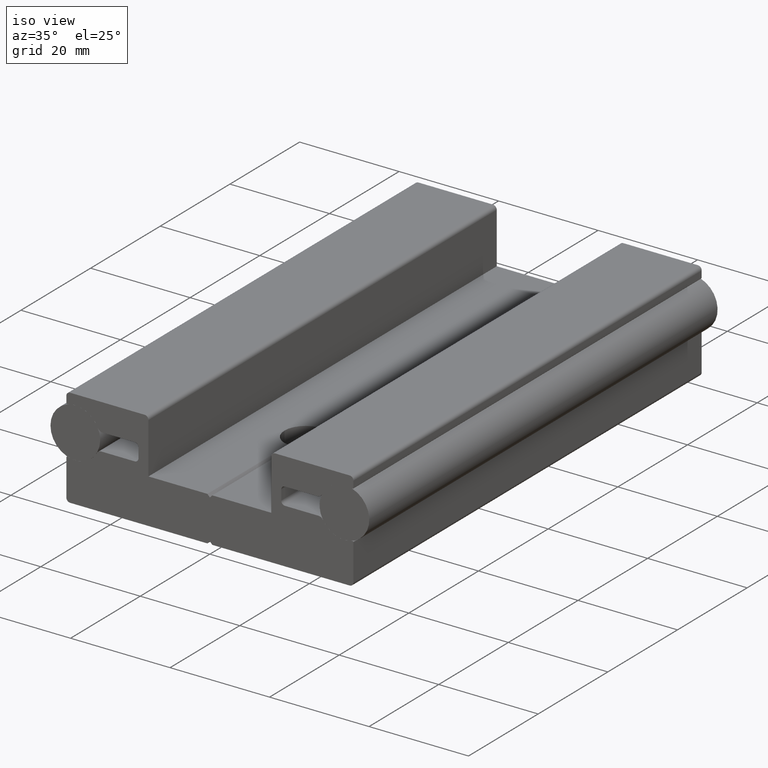
[diagram: clean part render]
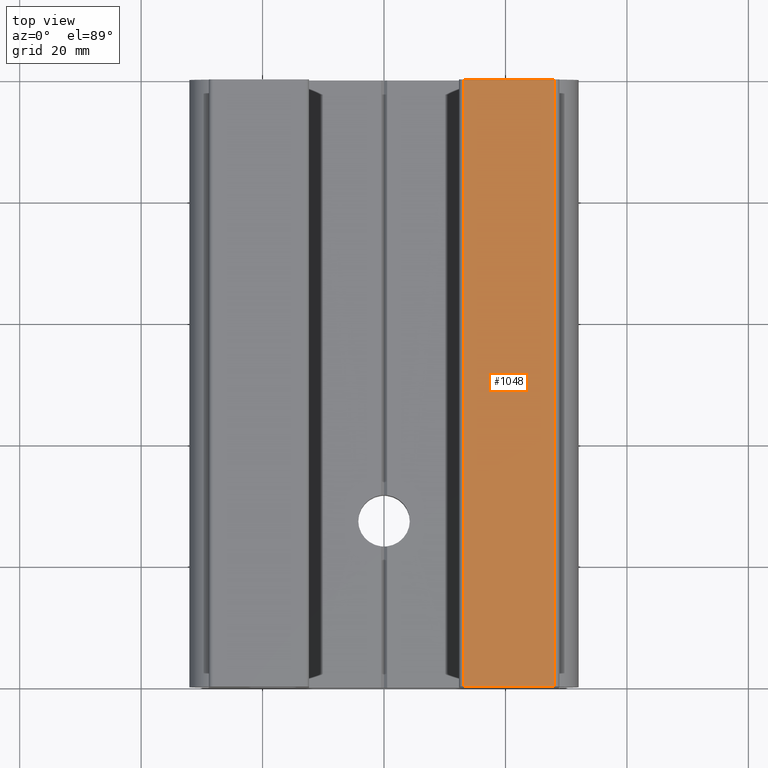
[diagram: tour spotlight — one face highlighted and labeled with its STEP entity id]
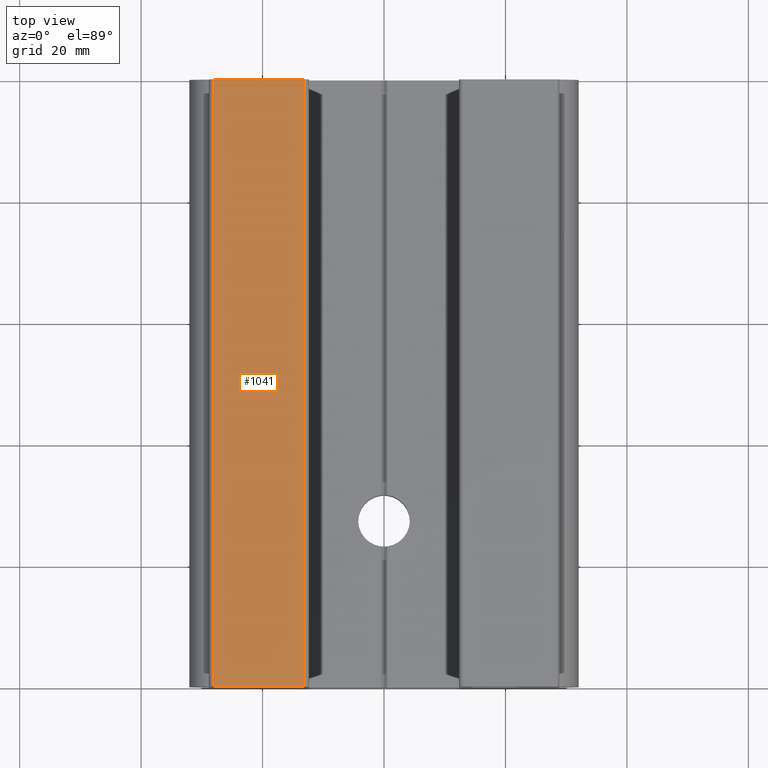
[diagram: tour spotlight — one face highlighted and labeled with its STEP entity id]
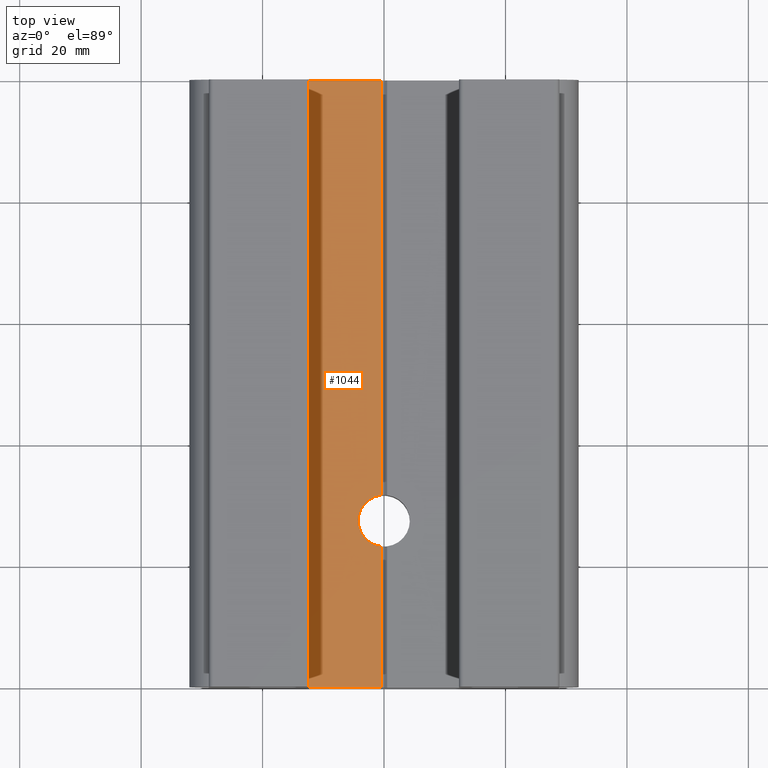
[diagram: tour spotlight — one face highlighted and labeled with its STEP entity id]
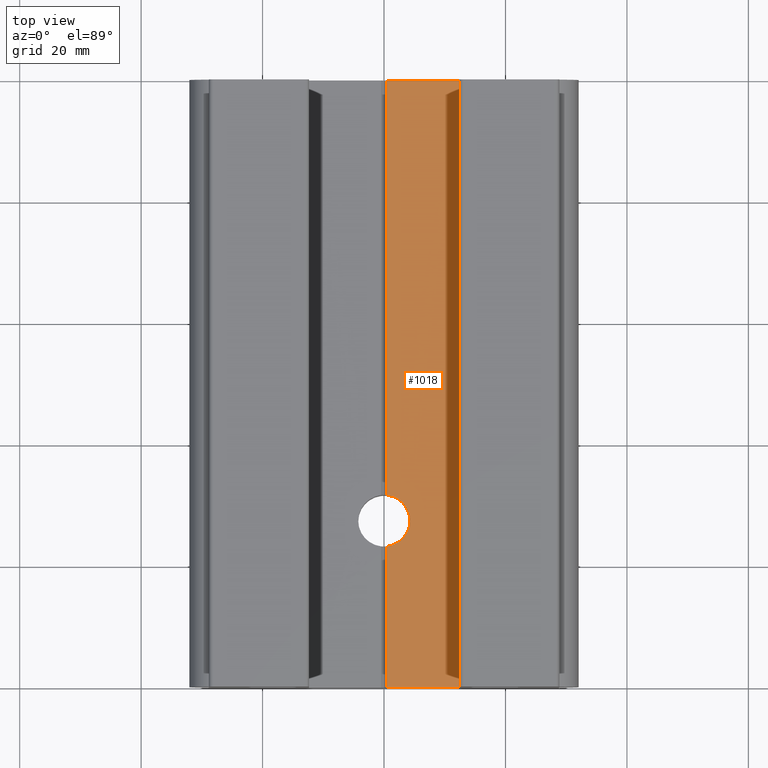
[diagram: tour spotlight — one face highlighted and labeled with its STEP entity id]
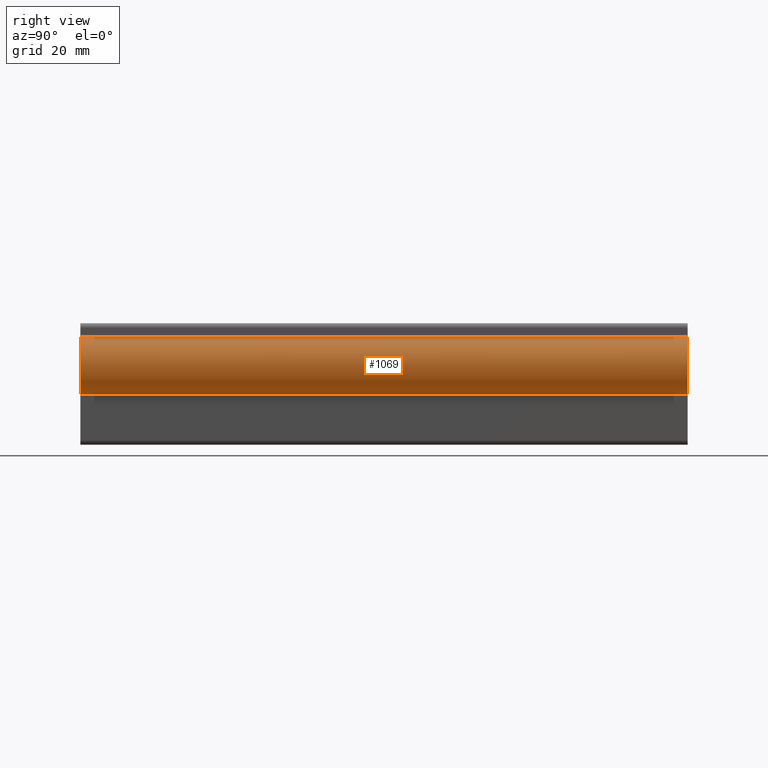
[diagram: tour spotlight — one face highlighted and labeled with its STEP entity id]
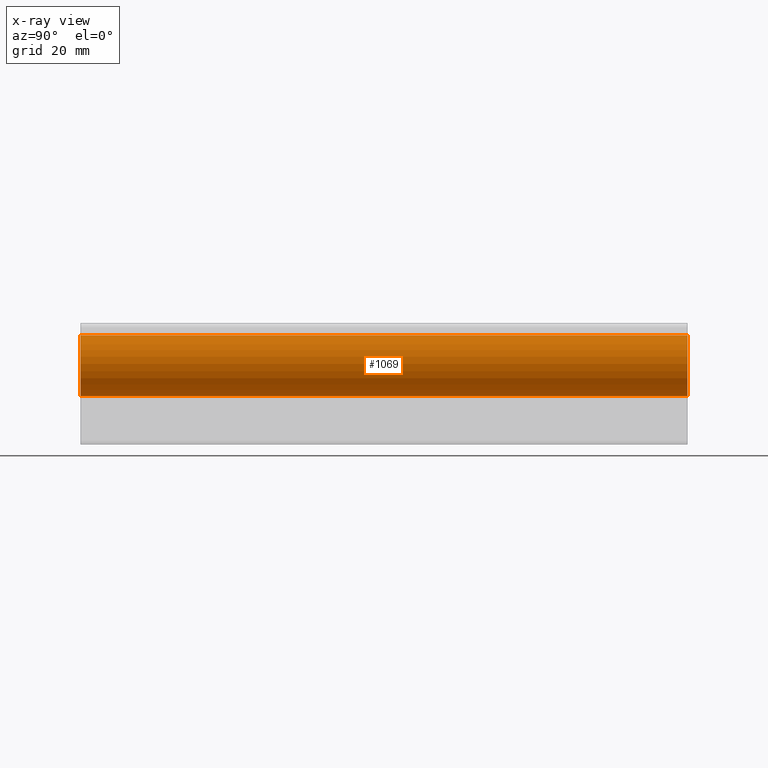
[diagram: x-ray of the same camera — body ghosted, this tour face saturated]
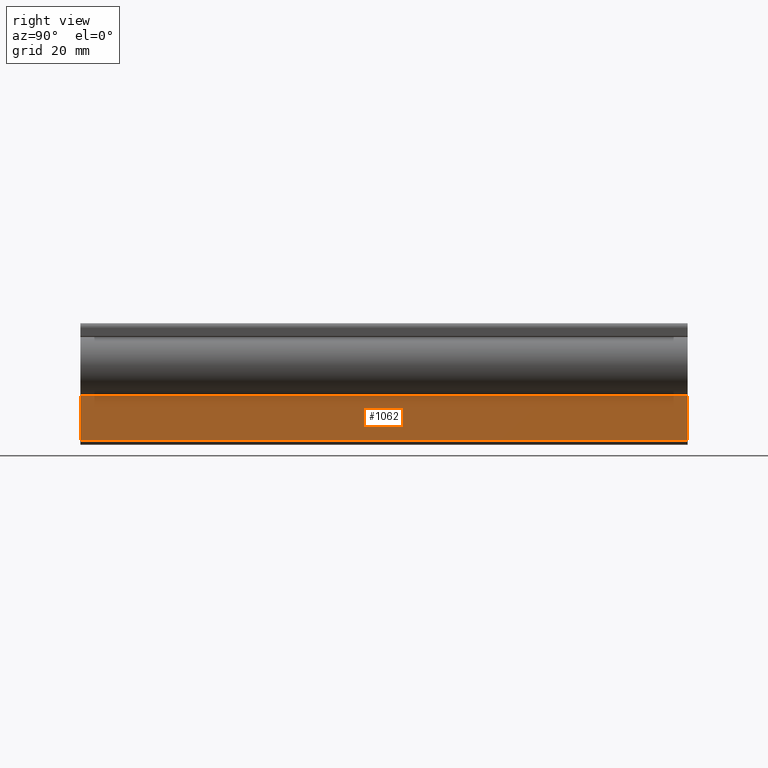
[diagram: tour spotlight — one face highlighted and labeled with its STEP entity id]
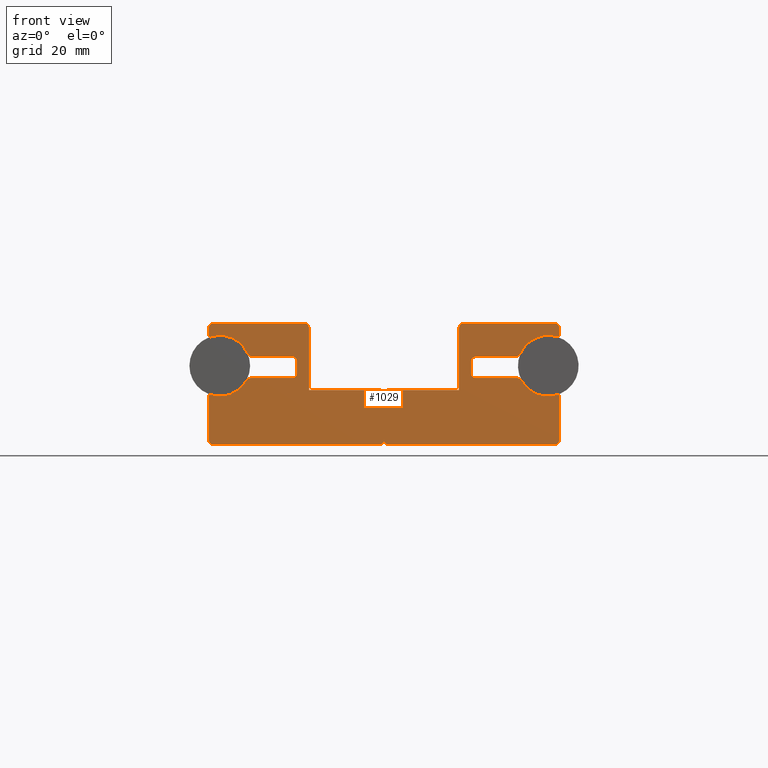
[diagram: tour spotlight — one face highlighted and labeled with its STEP entity id]
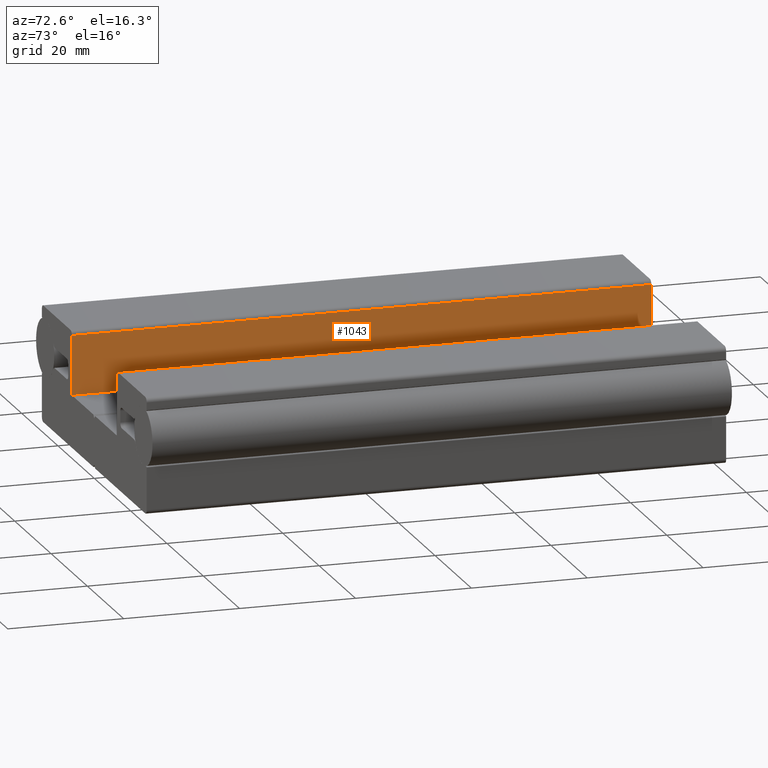
[diagram: tour spotlight — one face highlighted and labeled with its STEP entity id]
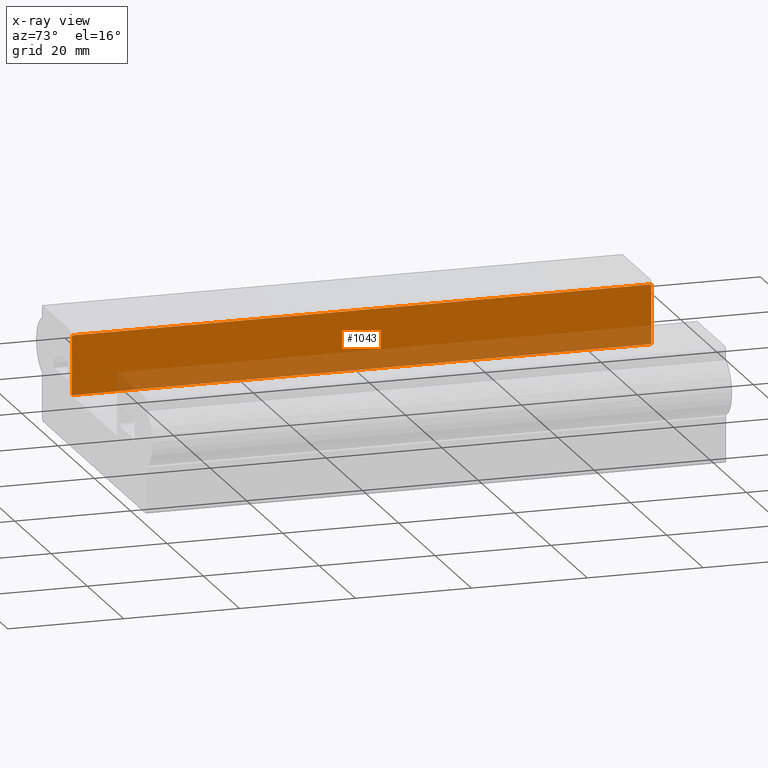
[diagram: x-ray of the same camera — body ghosted, this tour face saturated]
A machine part: a face-by-face anatomy tour. The part has 57 B-rep faces; the first image is the clean iso view, then the 8 largest visible faces are spotlighted one at a time (largest first), each with its STEP entity span.

Face 1 — top view, entity #1048. In plain terms, the highlighted planar face has unit normal (0, 0, 1).
Definition (entity closure, byte-faithful):
#50=PLANE('',#1235);
#92=FACE_OUTER_BOUND('',#146,.T.);
#146=EDGE_LOOP('',(#905,#906,#907,#908));
#198=LINE('',#1710,#294);
#220=LINE('',#1802,#316);
#246=LINE('',#1870,#342);
#247=LINE('',#1872,#343);
#294=VECTOR('',#1361,10.);
#316=VECTOR('',#1443,1000.);
#342=VECTOR('',#1523,10.);
#343=VECTOR('',#1526,10.);
#466=VERTEX_POINT('',#1707);
#467=VERTEX_POINT('',#1709);
#506=VERTEX_POINT('',#1799);
#507=VERTEX_POINT('',#1801);
#578=EDGE_CURVE('',#466,#467,#198,.T.);
#625=EDGE_CURVE('',#506,#507,#220,.T.);
#660=EDGE_CURVE('',#507,#466,#246,.T.);
#661=EDGE_CURVE('',#506,#467,#247,.T.);
#905=ORIENTED_EDGE('',*,*,#660,.F.);
#906=ORIENTED_EDGE('',*,*,#625,.F.);
#907=ORIENTED_EDGE('',*,*,#661,.T.);
#908=ORIENTED_EDGE('',*,*,#578,.F.);
#1048=ADVANCED_FACE('',(#92),#50,.T.);
#1235=AXIS2_PLACEMENT_3D('',#1871,#1524,#1525);
#1361=DIRECTION('',(1.,0.,0.));
#1443=DIRECTION('',(-1.,0.,0.));
#1523=DIRECTION('',(0.,1.,0.));
#1524=DIRECTION('center_axis',(0.,0.,1.));
#1525=DIRECTION('ref_axis',(1.,0.,0.));
#1526=DIRECTION('',(0.,1.,0.));
#1707=CARTESIAN_POINT('',(13.1,100.,19.5));
#1709=CARTESIAN_POINT('',(28.1,100.,19.5));
#1710=CARTESIAN_POINT('',(28.1,100.,19.5));
#1799=CARTESIAN_POINT('',(28.1,0.,19.5));
#1801=CARTESIAN_POINT('',(13.1,0.,19.5));
#1802=CARTESIAN_POINT('',(12.35,0.,19.5));
#1870=CARTESIAN_POINT('',(13.1,0.,19.5));
#1871=CARTESIAN_POINT('Origin',(12.35,10.,19.5));
#1872=CARTESIAN_POINT('',(28.1,0.,19.5));

Face 2 — top view, entity #1041. In plain terms, the highlighted planar face has unit normal (0, 0, 1).
Definition (entity closure, byte-faithful):
#45=PLANE('',#1228);
#85=FACE_OUTER_BOUND('',#139,.T.);
#139=EDGE_LOOP('',(#874,#875,#876,#877));
#192=LINE('',#1695,#288);
#224=LINE('',#1813,#320);
#239=LINE('',#1856,#335);
#240=LINE('',#1858,#336);
#288=VECTOR('',#1351,10.);
#320=VECTOR('',#1451,1000.);
#335=VECTOR('',#1502,10.);
#336=VECTOR('',#1505,10.);
#459=VERTEX_POINT('',#1692);
#460=VERTEX_POINT('',#1694);
#511=VERTEX_POINT('',#1810);
#512=VERTEX_POINT('',#1812);
#570=EDGE_CURVE('',#459,#460,#192,.T.);
#631=EDGE_CURVE('',#511,#512,#224,.T.);
#653=EDGE_CURVE('',#512,#459,#239,.T.);
#654=EDGE_CURVE('',#511,#460,#240,.T.);
#874=ORIENTED_EDGE('',*,*,#631,.F.);
#875=ORIENTED_EDGE('',*,*,#654,.T.);
#876=ORIENTED_EDGE('',*,*,#570,.F.);
#877=ORIENTED_EDGE('',*,*,#653,.F.);
#1041=ADVANCED_FACE('',(#85),#45,.T.);
#1228=AXIS2_PLACEMENT_3D('',#1857,#1503,#1504);
#1351=DIRECTION('',(1.,0.,0.));
#1451=DIRECTION('',(-1.,0.,0.));
#1502=DIRECTION('',(0.,1.,0.));
#1503=DIRECTION('center_axis',(0.,0.,1.));
#1504=DIRECTION('ref_axis',(1.,0.,0.));
#1505=DIRECTION('',(0.,1.,0.));
#1692=CARTESIAN_POINT('',(-28.1,100.,19.5));
#1694=CARTESIAN_POINT('',(-13.1,100.,19.5));
#1695=CARTESIAN_POINT('',(-13.1,100.,19.5));
#1810=CARTESIAN_POINT('',(-13.1,0.,19.5));
#1812=CARTESIAN_POINT('',(-28.1,0.,19.5));
#1813=CARTESIAN_POINT('',(-28.85,0.,19.5));
#1856=CARTESIAN_POINT('',(-28.1,0.,19.5));
#1857=CARTESIAN_POINT('Origin',(-28.85,10.,19.5));
#1858=CARTESIAN_POINT('',(-13.1,0.,19.5));

Face 3 — top view, entity #1044. In plain terms, the highlighted planar face has unit normal (0, 0, 1).
Definition (entity closure, byte-faithful):
#47=PLANE('',#1231);
#88=FACE_OUTER_BOUND('',#142,.T.);
#142=EDGE_LOOP('',(#886,#887,#888,#889,#890,#891,#892));
#177=LINE('',#1648,#273);
#194=LINE('',#1701,#290);
#222=LINE('',#1807,#318);
#242=LINE('',#1862,#338);
#243=LINE('',#1864,#339);
#273=VECTOR('',#1312,10.);
#290=VECTOR('',#1355,10.);
#318=VECTOR('',#1447,1000.);
#338=VECTOR('',#1511,10.);
#339=VECTOR('',#1514,10.);
#361=CIRCLE('',#1149,4.25);
#365=CIRCLE('',#1157,4.25);
#423=VERTEX_POINT('',#1606);
#424=VERTEX_POINT('',#1608);
#432=VERTEX_POINT('',#1625);
#440=VERTEX_POINT('',#1647);
#462=VERTEX_POINT('',#1698);
#463=VERTEX_POINT('',#1700);
#509=VERTEX_POINT('',#1806);
#527=EDGE_CURVE('',#424,#423,#361,.T.);
#536=EDGE_CURVE('',#432,#424,#365,.T.);
#547=EDGE_CURVE('',#440,#432,#177,.T.);
#573=EDGE_CURVE('',#462,#463,#194,.T.);
#628=EDGE_CURVE('',#440,#509,#222,.T.);
#656=EDGE_CURVE('',#509,#462,#242,.T.);
#657=EDGE_CURVE('',#423,#463,#243,.T.);
#886=ORIENTED_EDGE('',*,*,#536,.T.);
#887=ORIENTED_EDGE('',*,*,#527,.T.);
#888=ORIENTED_EDGE('',*,*,#657,.T.);
#889=ORIENTED_EDGE('',*,*,#573,.F.);
#890=ORIENTED_EDGE('',*,*,#656,.F.);
#891=ORIENTED_EDGE('',*,*,#628,.F.);
#892=ORIENTED_EDGE('',*,*,#547,.T.);
#1044=ADVANCED_FACE('',(#88),#47,.T.);
#1149=AXIS2_PLACEMENT_3D('',#1609,#1274,#1275);
#1157=AXIS2_PLACEMENT_3D('',#1626,#1291,#1292);
#1231=AXIS2_PLACEMENT_3D('',#1863,#1512,#1513);
#1274=DIRECTION('center_axis',(0.,0.,-1.));
#1275=DIRECTION('ref_axis',(1.,-1.80411241501588E-17,0.));
#1291=DIRECTION('center_axis',(0.,0.,-1.));
#1292=DIRECTION('ref_axis',(1.,-1.80411241501588E-17,0.));
#1312=DIRECTION('',(0.,1.,0.));
#1355=DIRECTION('',(1.,0.,0.));
#1447=DIRECTION('',(-1.,0.,0.));
#1511=DIRECTION('',(0.,1.,0.));
#1512=DIRECTION('center_axis',(0.,0.,1.));
#1513=DIRECTION('ref_axis',(1.,0.,0.));
#1514=DIRECTION('',(0.,1.,0.));
#1606=CARTESIAN_POINT('',(-0.499999999999998,31.7204857540335,8.5));
#1608=CARTESIAN_POINT('',(-4.25,27.5,8.5));
#1609=CARTESIAN_POINT('Origin',(9.0205620750794E-16,27.5,8.5));
#1625=CARTESIAN_POINT('',(-0.499999999999998,23.2795142459665,8.5));
#1626=CARTESIAN_POINT('Origin',(9.0205620750794E-16,27.5,8.5));
#1647=CARTESIAN_POINT('',(-0.5,0.,8.5));
#1648=CARTESIAN_POINT('',(-0.499999999999998,0.,8.5));
#1698=CARTESIAN_POINT('',(-12.35,100.,8.5));
#1700=CARTESIAN_POINT('',(-0.499999999999998,100.,8.5));
#1701=CARTESIAN_POINT('',(-0.499999999999998,100.,8.5));
#1806=CARTESIAN_POINT('',(-12.35,0.,8.5));
#1807=CARTESIAN_POINT('',(-12.35,0.,8.5));
#1862=CARTESIAN_POINT('',(-12.35,0.,8.5));
#1863=CARTESIAN_POINT('Origin',(-12.35,10.,8.5));
#1864=CARTESIAN_POINT('',(-0.499999999999998,0.,8.5));

Face 4 — top view, entity #1018. In plain terms, the highlighted planar face has unit normal (-0, 0, 1).
Definition (entity closure, byte-faithful):
#31=PLANE('',#1161);
#62=FACE_OUTER_BOUND('',#116,.T.);
#116=EDGE_LOOP('',(#697,#698,#699,#700,#701,#702));
#170=LINE('',#1634,#266);
#171=LINE('',#1636,#267);
#172=LINE('',#1638,#268);
#173=LINE('',#1640,#269);
#174=LINE('',#1641,#270);
#266=VECTOR('',#1301,10.);
#267=VECTOR('',#1302,1000.);
#268=VECTOR('',#1303,10.);
#269=VECTOR('',#1304,10.);
#270=VECTOR('',#1305,10.);
#366=CIRCLE('',#1160,4.25);
#422=VERTEX_POINT('',#1604);
#434=VERTEX_POINT('',#1629);
#435=VERTEX_POINT('',#1633);
#436=VERTEX_POINT('',#1635);
#437=VERTEX_POINT('',#1637);
#438=VERTEX_POINT('',#1639);
#539=EDGE_CURVE('',#422,#434,#366,.T.);
#540=EDGE_CURVE('',#435,#434,#170,.T.);
#541=EDGE_CURVE('',#436,#435,#171,.T.);
#542=EDGE_CURVE('',#436,#437,#172,.T.);
#543=EDGE_CURVE('',#438,#437,#173,.T.);
#544=EDGE_CURVE('',#422,#438,#174,.T.);
#697=ORIENTED_EDGE('',*,*,#539,.T.);
#698=ORIENTED_EDGE('',*,*,#540,.F.);
#699=ORIENTED_EDGE('',*,*,#541,.F.);
#700=ORIENTED_EDGE('',*,*,#542,.T.);
#701=ORIENTED_EDGE('',*,*,#543,.F.);
#702=ORIENTED_EDGE('',*,*,#544,.F.);
#1018=ADVANCED_FACE('',(#62),#31,.T.);
#1160=AXIS2_PLACEMENT_3D('',#1631,#1297,#1298);
#1161=AXIS2_PLACEMENT_3D('',#1632,#1299,#1300);
#1297=DIRECTION('center_axis',(1.46390166749098E-16,0.,-1.));
#1298=DIRECTION('ref_axis',(1.,-1.80411241501588E-17,0.));
#1299=DIRECTION('center_axis',(-1.46390166749098E-16,0.,1.));
#1300=DIRECTION('ref_axis',(1.,0.,1.46390166749098E-16));
#1301=DIRECTION('',(0.,1.,0.));
#1302=DIRECTION('',(-1.,0.,-1.46390166749098E-16));
#1303=DIRECTION('',(0.,1.,0.));
#1304=DIRECTION('',(1.,0.,0.));
#1305=DIRECTION('',(0.,1.,0.));
#1604=CARTESIAN_POINT('',(0.5,31.7204857540335,8.5));
#1629=CARTESIAN_POINT('',(0.5,23.2795142459665,8.5));
#1631=CARTESIAN_POINT('Origin',(9.0205620750794E-16,27.5,8.5));
#1632=CARTESIAN_POINT('Origin',(0.5,10.,8.5));
#1633=CARTESIAN_POINT('',(0.5,0.,8.5));
#1634=CARTESIAN_POINT('',(0.499999999999998,0.,8.5));
#1635=CARTESIAN_POINT('',(12.35,0.,8.5));
#1636=CARTESIAN_POINT('',(0.5,0.,8.5));
#1637=CARTESIAN_POINT('',(12.35,100.,8.5));
#1638=CARTESIAN_POINT('',(12.35,0.,8.5));
#1639=CARTESIAN_POINT('',(0.499999999999998,100.,8.5));
#1640=CARTESIAN_POINT('',(12.35,100.,8.5));
#1641=CARTESIAN_POINT('',(0.499999999999998,0.,8.5));

Face 5 — right view, entity #1069. An x-ray twin of the same camera follows (body ghosted, this face saturated) — the face is partly hidden behind the body. In plain terms, the highlighted cylindrical surface (bore or boss wall) has radius 5 mm, axis along (-0, -1, -0).
Definition (entity closure, byte-faithful):
#113=FACE_OUTER_BOUND('',#167,.T.);
#167=EDGE_LOOP('',(#988,#989,#990,#991));
#264=LINE('',#1915,#360);
#360=VECTOR('',#1591,5.);
#411=CIRCLE('',#1257,5.);
#412=CIRCLE('',#1259,5.);
#523=VERTEX_POINT('',#1910);
#524=VERTEX_POINT('',#1913);
#678=EDGE_CURVE('',#523,#523,#411,.T.);
#679=EDGE_CURVE('',#524,#524,#412,.T.);
#680=EDGE_CURVE('',#524,#523,#264,.T.);
#988=ORIENTED_EDGE('',*,*,#679,.F.);
#989=ORIENTED_EDGE('',*,*,#680,.T.);
#990=ORIENTED_EDGE('',*,*,#678,.F.);
#991=ORIENTED_EDGE('',*,*,#680,.F.);
#1016=CYLINDRICAL_SURFACE('',#1258,5.);
#1069=ADVANCED_FACE('',(#113),#1016,.T.);
#1257=AXIS2_PLACEMENT_3D('',#1911,#1585,#1586);
#1258=AXIS2_PLACEMENT_3D('',#1912,#1587,#1588);
#1259=AXIS2_PLACEMENT_3D('',#1914,#1589,#1590);
#1585=DIRECTION('center_axis',(0.,0.,-1.));
#1586=DIRECTION('ref_axis',(-1.,0.,0.));
#1587=DIRECTION('center_axis',(0.,0.,1.));
#1588=DIRECTION('ref_axis',(-1.,0.,0.));
#1589=DIRECTION('center_axis',(0.,0.,1.));
#1590=DIRECTION('ref_axis',(-1.,0.,0.));
#1591=DIRECTION('',(0.,0.,-1.));
#1910=CARTESIAN_POINT('',(5.,6.12323399573677E-16,-50.));
#1911=CARTESIAN_POINT('Origin',(0.,0.,-50.));
#1912=CARTESIAN_POINT('Origin',(0.,0.,0.));
#1913=CARTESIAN_POINT('',(5.,6.12323399573677E-16,50.));
#1914=CARTESIAN_POINT('Origin',(0.,0.,50.));
#1915=CARTESIAN_POINT('',(5.,6.12323399573677E-16,0.));

Face 6 — right view, entity #1062. In plain terms, the highlighted planar face has unit normal (1, 0, 0).
Definition (entity closure, byte-faithful):
#55=PLANE('',#1249);
#106=FACE_OUTER_BOUND('',#160,.T.);
#160=EDGE_LOOP('',(#961,#962,#963,#964));
#203=LINE('',#1738,#299);
#215=LINE('',#1774,#311);
#260=LINE('',#1898,#356);
#261=LINE('',#1900,#357);
#299=VECTOR('',#1384,10.);
#311=VECTOR('',#1420,1000.);
#356=VECTOR('',#1565,10.);
#357=VECTOR('',#1568,10.);
#480=VERTEX_POINT('',#1735);
#481=VERTEX_POINT('',#1737);
#492=VERTEX_POINT('',#1771);
#493=VERTEX_POINT('',#1773);
#592=EDGE_CURVE('',#480,#481,#203,.T.);
#611=EDGE_CURVE('',#492,#493,#215,.T.);
#674=EDGE_CURVE('',#493,#480,#260,.T.);
#675=EDGE_CURVE('',#492,#481,#261,.T.);
#961=ORIENTED_EDGE('',*,*,#674,.F.);
#962=ORIENTED_EDGE('',*,*,#611,.F.);
#963=ORIENTED_EDGE('',*,*,#675,.T.);
#964=ORIENTED_EDGE('',*,*,#592,.F.);
#1062=ADVANCED_FACE('',(#106),#55,.T.);
#1249=AXIS2_PLACEMENT_3D('',#1899,#1566,#1567);
#1384=DIRECTION('',(0.,0.,-1.));
#1420=DIRECTION('',(0.,0.,1.));
#1565=DIRECTION('',(0.,1.,0.));
#1566=DIRECTION('center_axis',(1.,0.,0.));
#1567=DIRECTION('ref_axis',(0.,0.,-1.));
#1568=DIRECTION('',(0.,1.,0.));
#1735=CARTESIAN_POINT('',(28.85,100.,7.55227324925881));
#1737=CARTESIAN_POINT('',(28.85,100.,0.25));
#1738=CARTESIAN_POINT('',(28.85,100.,0.25));
#1771=CARTESIAN_POINT('',(28.85,0.,0.25));
#1773=CARTESIAN_POINT('',(28.85,0.,7.55227324925881));
#1774=CARTESIAN_POINT('',(28.85,0.,-0.5));
#1898=CARTESIAN_POINT('',(28.85,0.,7.55227324925881));
#1899=CARTESIAN_POINT('Origin',(28.85,10.,-0.5));
#1900=CARTESIAN_POINT('',(28.85,0.,0.25));

Face 7 — front view, entity #1029. In plain terms, the highlighted planar face has unit normal (0, 1, 0).
Definition (entity closure, byte-faithful):
#40=PLANE('',#1196);
#73=FACE_OUTER_BOUND('',#127,.T.);
#127=EDGE_LOOP('',(#786,#787,#788,#789,#790,#791,#792,#793,#794,#795,#796,
#797,#798,#799,#800,#801,#802,#803,#804,#805,#806,#807,#808,#809,#810,#811,
#812,#813,#814,#815,#816,#817,#818,#819,#820,#821,#822,#823,#824,#825,#826,
#827,#828,#829));
#171=LINE('',#1636,#267);
#176=LINE('',#1645,#272);
#178=LINE('',#1649,#274);
#180=LINE('',#1654,#276);
#185=LINE('',#1663,#281);
#187=LINE('',#1667,#283);
#208=LINE('',#1754,#304);
#214=LINE('',#1770,#310);
#215=LINE('',#1774,#311);
#216=LINE('',#1782,#312);
#217=LINE('',#1786,#313);
#218=LINE('',#1790,#314);
#219=LINE('',#1798,#315);
#220=LINE('',#1802,#316);
#221=LINE('',#1805,#317);
#222=LINE('',#1807,#318);
#223=LINE('',#1809,#319);
#224=LINE('',#1813,#320);
#225=LINE('',#1817,#321);
#226=LINE('',#1825,#322);
#227=LINE('',#1829,#323);
#228=LINE('',#1833,#324);
#267=VECTOR('',#1302,1000.);
#272=VECTOR('',#1309,1000.);
#274=VECTOR('',#1313,1000.);
#276=VECTOR('',#1317,1000.);
#281=VECTOR('',#1324,1000.);
#283=VECTOR('',#1328,1000.);
#304=VECTOR('',#1397,1000.);
#310=VECTOR('',#1417,1000.);
#311=VECTOR('',#1420,1000.);
#312=VECTOR('',#1427,1000.);
#313=VECTOR('',#1430,1000.);
#314=VECTOR('',#1433,1000.);
#315=VECTOR('',#1440,1000.);
#316=VECTOR('',#1443,1000.);
#317=VECTOR('',#1446,1000.);
#318=VECTOR('',#1447,1000.);
#319=VECTOR('',#1448,1000.);
#320=VECTOR('',#1451,1000.);
#321=VECTOR('',#1454,1000.);
#322=VECTOR('',#1461,1000.);
#323=VECTOR('',#1464,1000.);
#324=VECTOR('',#1467,1000.);
#389=CIRCLE('',#1192,0.2);
#390=CIRCLE('',#1195,5.);
#391=CIRCLE('',#1197,0.75);
#392=CIRCLE('',#1198,0.75);
#393=CIRCLE('',#1199,0.2);
#394=CIRCLE('',#1200,5.);
#395=CIRCLE('',#1201,1.);
#396=CIRCLE('',#1202,0.75);
#397=CIRCLE('',#1203,0.75);
#398=CIRCLE('',#1204,1.);
#399=CIRCLE('',#1205,5.);
#400=CIRCLE('',#1206,0.2);
#401=CIRCLE('',#1207,0.75);
#402=CIRCLE('',#1208,0.75);
#403=CIRCLE('',#1209,0.75);
#404=CIRCLE('',#1210,0.75);
#405=CIRCLE('',#1211,0.2);
#406=CIRCLE('',#1212,5.);
#407=CIRCLE('',#1213,1.);
#408=CIRCLE('',#1214,0.75);
#409=CIRCLE('',#1215,0.75);
#410=CIRCLE('',#1216,1.);
#435=VERTEX_POINT('',#1633);
#436=VERTEX_POINT('',#1635);
#439=VERTEX_POINT('',#1643);
#440=VERTEX_POINT('',#1647);
#441=VERTEX_POINT('',#1651);
#442=VERTEX_POINT('',#1653);
#445=VERTEX_POINT('',#1661);
#446=VERTEX_POINT('',#1665);
#487=VERTEX_POINT('',#1752);
#488=VERTEX_POINT('',#1753);
#489=VERTEX_POINT('',#1758);
#490=VERTEX_POINT('',#1764);
#491=VERTEX_POINT('',#1769);
#492=VERTEX_POINT('',#1771);
#493=VERTEX_POINT('',#1773);
#494=VERTEX_POINT('',#1775);
#495=VERTEX_POINT('',#1777);
#496=VERTEX_POINT('',#1779);
#497=VERTEX_POINT('',#1781);
#498=VERTEX_POINT('',#1783);
#499=VERTEX_POINT('',#1785);
#500=VERTEX_POINT('',#1787);
#501=VERTEX_POINT('',#1789);
#502=VERTEX_POINT('',#1791);
#503=VERTEX_POINT('',#1793);
#504=VERTEX_POINT('',#1795);
#505=VERTEX_POINT('',#1797);
#506=VERTEX_POINT('',#1799);
#507=VERTEX_POINT('',#1801);
#508=VERTEX_POINT('',#1803);
#509=VERTEX_POINT('',#1806);
#510=VERTEX_POINT('',#1808);
#511=VERTEX_POINT('',#1810);
#512=VERTEX_POINT('',#1812);
#513=VERTEX_POINT('',#1814);
#514=VERTEX_POINT('',#1816);
#515=VERTEX_POINT('',#1818);
#516=VERTEX_POINT('',#1820);
#517=VERTEX_POINT('',#1822);
#518=VERTEX_POINT('',#1824);
#519=VERTEX_POINT('',#1826);
#520=VERTEX_POINT('',#1828);
#521=VERTEX_POINT('',#1830);
#522=VERTEX_POINT('',#1832);
#541=EDGE_CURVE('',#436,#435,#171,.T.);
#546=EDGE_CURVE('',#435,#439,#176,.T.);
#548=EDGE_CURVE('',#439,#440,#178,.T.);
#550=EDGE_CURVE('',#442,#441,#180,.T.);
#555=EDGE_CURVE('',#441,#445,#185,.T.);
#557=EDGE_CURVE('',#445,#446,#187,.T.);
#600=EDGE_CURVE('',#487,#488,#208,.T.);
#603=EDGE_CURVE('',#489,#487,#389,.F.);
#606=EDGE_CURVE('',#490,#489,#390,.T.);
#608=EDGE_CURVE('',#488,#442,#391,.F.);
#609=EDGE_CURVE('',#446,#491,#214,.T.);
#610=EDGE_CURVE('',#491,#492,#392,.F.);
#611=EDGE_CURVE('',#492,#493,#215,.T.);
#612=EDGE_CURVE('',#493,#494,#393,.F.);
#613=EDGE_CURVE('',#494,#495,#394,.T.);
#614=EDGE_CURVE('',#495,#496,#395,.F.);
#615=EDGE_CURVE('',#496,#497,#216,.T.);
#616=EDGE_CURVE('',#497,#498,#396,.T.);
#617=EDGE_CURVE('',#498,#499,#217,.T.);
#618=EDGE_CURVE('',#499,#500,#397,.T.);
#619=EDGE_CURVE('',#500,#501,#218,.T.);
#620=EDGE_CURVE('',#501,#502,#398,.F.);
#621=EDGE_CURVE('',#502,#503,#399,.T.);
#622=EDGE_CURVE('',#503,#504,#400,.F.);
#623=EDGE_CURVE('',#504,#505,#219,.T.);
#624=EDGE_CURVE('',#505,#506,#401,.F.);
#625=EDGE_CURVE('',#506,#507,#220,.T.);
#626=EDGE_CURVE('',#507,#508,#402,.F.);
#627=EDGE_CURVE('',#508,#436,#221,.T.);
#628=EDGE_CURVE('',#440,#509,#222,.T.);
#629=EDGE_CURVE('',#509,#510,#223,.T.);
#630=EDGE_CURVE('',#510,#511,#403,.F.);
#631=EDGE_CURVE('',#511,#512,#224,.T.);
#632=EDGE_CURVE('',#512,#513,#404,.F.);
#633=EDGE_CURVE('',#513,#514,#225,.T.);
#634=EDGE_CURVE('',#514,#515,#405,.F.);
#635=EDGE_CURVE('',#515,#516,#406,.T.);
#636=EDGE_CURVE('',#516,#517,#407,.F.);
#637=EDGE_CURVE('',#517,#518,#226,.T.);
#638=EDGE_CURVE('',#518,#519,#408,.T.);
#639=EDGE_CURVE('',#519,#520,#227,.T.);
#640=EDGE_CURVE('',#520,#521,#409,.T.);
#641=EDGE_CURVE('',#521,#522,#228,.T.);
#642=EDGE_CURVE('',#522,#490,#410,.F.);
#786=ORIENTED_EDGE('',*,*,#606,.T.);
#787=ORIENTED_EDGE('',*,*,#603,.T.);
#788=ORIENTED_EDGE('',*,*,#600,.T.);
#789=ORIENTED_EDGE('',*,*,#608,.T.);
#790=ORIENTED_EDGE('',*,*,#550,.T.);
#791=ORIENTED_EDGE('',*,*,#555,.T.);
#792=ORIENTED_EDGE('',*,*,#557,.T.);
#793=ORIENTED_EDGE('',*,*,#609,.T.);
#794=ORIENTED_EDGE('',*,*,#610,.T.);
#795=ORIENTED_EDGE('',*,*,#611,.T.);
#796=ORIENTED_EDGE('',*,*,#612,.T.);
#797=ORIENTED_EDGE('',*,*,#613,.T.);
#798=ORIENTED_EDGE('',*,*,#614,.T.);
#799=ORIENTED_EDGE('',*,*,#615,.T.);
#800=ORIENTED_EDGE('',*,*,#616,.T.);
#801=ORIENTED_EDGE('',*,*,#617,.T.);
#802=ORIENTED_EDGE('',*,*,#618,.T.);
#803=ORIENTED_EDGE('',*,*,#619,.T.);
#804=ORIENTED_EDGE('',*,*,#620,.T.);
#805=ORIENTED_EDGE('',*,*,#621,.T.);
#806=ORIENTED_EDGE('',*,*,#622,.T.);
#807=ORIENTED_EDGE('',*,*,#623,.T.);
#808=ORIENTED_EDGE('',*,*,#624,.T.);
#809=ORIENTED_EDGE('',*,*,#625,.T.);
#810=ORIENTED_EDGE('',*,*,#626,.T.);
#811=ORIENTED_EDGE('',*,*,#627,.T.);
#812=ORIENTED_EDGE('',*,*,#541,.T.);
#813=ORIENTED_EDGE('',*,*,#546,.T.);
#814=ORIENTED_EDGE('',*,*,#548,.T.);
#815=ORIENTED_EDGE('',*,*,#628,.T.);
#816=ORIENTED_EDGE('',*,*,#629,.T.);
#817=ORIENTED_EDGE('',*,*,#630,.T.);
#818=ORIENTED_EDGE('',*,*,#631,.T.);
#819=ORIENTED_EDGE('',*,*,#632,.T.);
#820=ORIENTED_EDGE('',*,*,#633,.T.);
#821=ORIENTED_EDGE('',*,*,#634,.T.);
#822=ORIENTED_EDGE('',*,*,#635,.T.);
#823=ORIENTED_EDGE('',*,*,#636,.T.);
#824=ORIENTED_EDGE('',*,*,#637,.T.);
#825=ORIENTED_EDGE('',*,*,#638,.T.);
#826=ORIENTED_EDGE('',*,*,#639,.T.);
#827=ORIENTED_EDGE('',*,*,#640,.T.);
#828=ORIENTED_EDGE('',*,*,#641,.T.);
#829=ORIENTED_EDGE('',*,*,#642,.T.);
#1029=ADVANCED_FACE('',(#73),#40,.F.);
#1192=AXIS2_PLACEMENT_3D('',#1759,#1402,#1403);
#1195=AXIS2_PLACEMENT_3D('',#1765,#1410,#1411);
#1196=AXIS2_PLACEMENT_3D('',#1767,#1413,#1414);
#1197=AXIS2_PLACEMENT_3D('',#1768,#1415,#1416);
#1198=AXIS2_PLACEMENT_3D('',#1772,#1418,#1419);
#1199=AXIS2_PLACEMENT_3D('',#1776,#1421,#1422);
#1200=AXIS2_PLACEMENT_3D('',#1778,#1423,#1424);
#1201=AXIS2_PLACEMENT_3D('',#1780,#1425,#1426);
#1202=AXIS2_PLACEMENT_3D('',#1784,#1428,#1429);
#1203=AXIS2_PLACEMENT_3D('',#1788,#1431,#1432);
#1204=AXIS2_PLACEMENT_3D('',#1792,#1434,#1435);
#1205=AXIS2_PLACEMENT_3D('',#1794,#1436,#1437);
#1206=AXIS2_PLACEMENT_3D('',#1796,#1438,#1439);
#1207=AXIS2_PLACEMENT_3D('',#1800,#1441,#1442);
#1208=AXIS2_PLACEMENT_3D('',#1804,#1444,#1445);
#1209=AXIS2_PLACEMENT_3D('',#1811,#1449,#1450);
#1210=AXIS2_PLACEMENT_3D('',#1815,#1452,#1453);
#1211=AXIS2_PLACEMENT_3D('',#1819,#1455,#1456);
#1212=AXIS2_PLACEMENT_3D('',#1821,#1457,#1458);
#1213=AXIS2_PLACEMENT_3D('',#1823,#1459,#1460);
#1214=AXIS2_PLACEMENT_3D('',#1827,#1462,#1463);
#1215=AXIS2_PLACEMENT_3D('',#1831,#1465,#1466);
#1216=AXIS2_PLACEMENT_3D('',#1834,#1468,#1469);
#1302=DIRECTION('',(-1.,0.,-1.46390166749098E-16));
#1309=DIRECTION('',(-0.707106781186547,0.,-0.707106781186548));
#1313=DIRECTION('',(-0.707106781186548,0.,0.707106781186547));
#1317=DIRECTION('',(1.,0.,-2.67704240119877E-17));
#1324=DIRECTION('',(0.707106781186548,0.,0.707106781186547));
#1328=DIRECTION('',(0.707106781186548,0.,-0.707106781186548));
#1397=DIRECTION('',(0.,0.,-1.));
#1402=DIRECTION('center_axis',(0.,1.,0.));
#1403=DIRECTION('ref_axis',(0.,0.,1.));
#1410=DIRECTION('center_axis',(0.,1.,0.));
#1411=DIRECTION('ref_axis',(1.,0.,0.));
#1413=DIRECTION('center_axis',(0.,1.,0.));
#1414=DIRECTION('ref_axis',(0.,0.,1.));
#1415=DIRECTION('center_axis',(0.,1.,0.));
#1416=DIRECTION('ref_axis',(0.,0.,1.));
#1417=DIRECTION('',(1.,0.,3.05947702994146E-17));
#1418=DIRECTION('center_axis',(0.,1.,0.));
#1419=DIRECTION('ref_axis',(0.,0.,1.));
#1420=DIRECTION('',(0.,0.,1.));
#1421=DIRECTION('center_axis',(0.,1.,0.));
#1422=DIRECTION('ref_axis',(0.,0.,1.));
#1423=DIRECTION('center_axis',(0.,1.,0.));
#1424=DIRECTION('ref_axis',(1.,0.,0.));
#1425=DIRECTION('center_axis',(0.,1.,0.));
#1426=DIRECTION('ref_axis',(0.,0.,1.));
#1427=DIRECTION('',(-1.,0.,2.13703683679422E-16));
#1428=DIRECTION('center_axis',(0.,1.,0.));
#1429=DIRECTION('ref_axis',(0.,0.,1.));
#1430=DIRECTION('',(0.,0.,1.));
#1431=DIRECTION('center_axis',(0.,1.,0.));
#1432=DIRECTION('ref_axis',(0.,0.,1.));
#1433=DIRECTION('',(1.,0.,4.37492302319448E-16));
#1434=DIRECTION('center_axis',(0.,1.,0.));
#1435=DIRECTION('ref_axis',(0.,0.,1.));
#1436=DIRECTION('center_axis',(0.,1.,0.));
#1437=DIRECTION('ref_axis',(1.,0.,0.));
#1438=DIRECTION('center_axis',(0.,1.,0.));
#1439=DIRECTION('ref_axis',(0.,0.,1.));
#1440=DIRECTION('',(0.,0.,1.));
#1441=DIRECTION('center_axis',(0.,1.,0.));
#1442=DIRECTION('ref_axis',(0.,0.,1.));
#1443=DIRECTION('',(-1.,0.,0.));
#1444=DIRECTION('center_axis',(0.,1.,0.));
#1445=DIRECTION('ref_axis',(0.,0.,1.));
#1446=DIRECTION('',(0.,0.,-1.));
#1447=DIRECTION('',(-1.,0.,0.));
#1448=DIRECTION('',(0.,0.,1.));
#1449=DIRECTION('center_axis',(0.,1.,0.));
#1450=DIRECTION('ref_axis',(0.,0.,1.));
#1451=DIRECTION('',(-1.,0.,0.));
#1452=DIRECTION('center_axis',(0.,1.,0.));
#1453=DIRECTION('ref_axis',(0.,0.,1.));
#1454=DIRECTION('',(0.,0.,-1.));
#1455=DIRECTION('center_axis',(0.,1.,0.));
#1456=DIRECTION('ref_axis',(0.,0.,1.));
#1457=DIRECTION('center_axis',(0.,1.,0.));
#1458=DIRECTION('ref_axis',(1.,0.,0.));
#1459=DIRECTION('center_axis',(0.,1.,0.));
#1460=DIRECTION('ref_axis',(0.,0.,1.));
#1461=DIRECTION('',(1.,0.,2.18746151159724E-16));
#1462=DIRECTION('center_axis',(0.,1.,0.));
#1463=DIRECTION('ref_axis',(0.,0.,1.));
#1464=DIRECTION('',(0.,0.,-1.));
#1465=DIRECTION('center_axis',(0.,1.,0.));
#1466=DIRECTION('ref_axis',(0.,0.,1.));
#1467=DIRECTION('',(-1.,0.,0.));
#1468=DIRECTION('center_axis',(0.,1.,0.));
#1469=DIRECTION('ref_axis',(0.,0.,1.));
#1633=CARTESIAN_POINT('',(0.5,0.,8.5));
#1635=CARTESIAN_POINT('',(12.35,0.,8.5));
#1636=CARTESIAN_POINT('',(0.5,0.,8.5));
#1643=CARTESIAN_POINT('',(0.,0.,8.));
#1645=CARTESIAN_POINT('',(0.,0.,8.));
#1647=CARTESIAN_POINT('',(-0.5,0.,8.5));
#1649=CARTESIAN_POINT('',(-0.5,0.,8.5));
#1651=CARTESIAN_POINT('',(-0.5,0.,-0.5));
#1653=CARTESIAN_POINT('',(-28.1,0.,-0.5));
#1654=CARTESIAN_POINT('',(-28.85,0.,-0.5));
#1661=CARTESIAN_POINT('',(0.,0.,0.));
#1663=CARTESIAN_POINT('',(-0.5,0.,-0.5));
#1665=CARTESIAN_POINT('',(0.5,0.,-0.5));
#1667=CARTESIAN_POINT('',(0.,0.,0.));
#1752=CARTESIAN_POINT('',(-28.85,0.,7.55227324925881));
#1753=CARTESIAN_POINT('',(-28.85,0.,0.25));
#1754=CARTESIAN_POINT('',(-28.85,0.,-0.5));
#1758=CARTESIAN_POINT('',(-28.5884615384615,0.,7.74257043197963));
#1759=CARTESIAN_POINT('Origin',(-28.65,0.,7.55227324925881));
#1764=CARTESIAN_POINT('',(-22.7198729810778,0.,10.));
#1765=CARTESIAN_POINT('Origin',(-27.05,0.,12.5));
#1767=CARTESIAN_POINT('Origin',(27.05,0.,12.5));
#1768=CARTESIAN_POINT('Origin',(-28.1,0.,0.25));
#1769=CARTESIAN_POINT('',(28.1,0.,-0.5));
#1770=CARTESIAN_POINT('',(0.5,0.,-0.5));
#1771=CARTESIAN_POINT('',(28.85,0.,0.25));
#1772=CARTESIAN_POINT('Origin',(28.1,0.,0.25));
#1773=CARTESIAN_POINT('',(28.85,0.,7.55227324925881));
#1774=CARTESIAN_POINT('',(28.85,0.,-0.5));
#1775=CARTESIAN_POINT('',(28.5884615384615,0.,7.74257043197962));
#1776=CARTESIAN_POINT('Origin',(28.65,0.,7.55227324925881));
#1777=CARTESIAN_POINT('',(22.7198729810778,0.,10.));
#1778=CARTESIAN_POINT('Origin',(27.05,0.,12.5));
#1779=CARTESIAN_POINT('',(21.8538475772933,0.,10.5));
#1780=CARTESIAN_POINT('Origin',(21.8538475772933,0.,9.5));
#1781=CARTESIAN_POINT('',(15.1,0.,10.5));
#1782=CARTESIAN_POINT('',(14.35,0.,10.5));
#1783=CARTESIAN_POINT('',(14.35,0.,11.25));
#1784=CARTESIAN_POINT('Origin',(15.1,0.,11.25));
#1785=CARTESIAN_POINT('',(14.35,0.,13.25));
#1786=CARTESIAN_POINT('',(14.35,0.,14.));
#1787=CARTESIAN_POINT('',(15.1,0.,14.));
#1788=CARTESIAN_POINT('Origin',(15.1,0.,13.25));
#1789=CARTESIAN_POINT('',(21.5956439426821,0.,14.));
#1790=CARTESIAN_POINT('',(22.2803039929152,0.,14.));
#1791=CARTESIAN_POINT('',(22.5047032855685,0.,14.5833333333333));
#1792=CARTESIAN_POINT('Origin',(21.5956439426821,0.,15.));
#1793=CARTESIAN_POINT('',(28.5884615384615,0.,17.2574295680204));
#1794=CARTESIAN_POINT('Origin',(27.05,0.,12.5));
#1795=CARTESIAN_POINT('',(28.85,0.,17.4477267507412));
#1796=CARTESIAN_POINT('Origin',(28.65,0.,17.4477267507412));
#1797=CARTESIAN_POINT('',(28.85,0.,18.75));
#1798=CARTESIAN_POINT('',(28.85,0.,19.5));
#1799=CARTESIAN_POINT('',(28.1,0.,19.5));
#1800=CARTESIAN_POINT('Origin',(28.1,0.,18.75));
#1801=CARTESIAN_POINT('',(13.1,0.,19.5));
#1802=CARTESIAN_POINT('',(12.35,0.,19.5));
#1803=CARTESIAN_POINT('',(12.35,0.,18.75));
#1804=CARTESIAN_POINT('Origin',(13.1,0.,18.75));
#1805=CARTESIAN_POINT('',(12.35,0.,8.5));
#1806=CARTESIAN_POINT('',(-12.35,0.,8.5));
#1807=CARTESIAN_POINT('',(-12.35,0.,8.5));
#1808=CARTESIAN_POINT('',(-12.35,0.,18.75));
#1809=CARTESIAN_POINT('',(-12.35,0.,19.5));
#1810=CARTESIAN_POINT('',(-13.1,0.,19.5));
#1811=CARTESIAN_POINT('Origin',(-13.1,0.,18.75));
#1812=CARTESIAN_POINT('',(-28.1,0.,19.5));
#1813=CARTESIAN_POINT('',(-28.85,0.,19.5));
#1814=CARTESIAN_POINT('',(-28.85,0.,18.75));
#1815=CARTESIAN_POINT('Origin',(-28.1,0.,18.75));
#1816=CARTESIAN_POINT('',(-28.85,0.,17.4477267507412));
#1817=CARTESIAN_POINT('',(-28.85,0.,19.5));
#1818=CARTESIAN_POINT('',(-28.5884615384615,0.,17.2574295680204));
#1819=CARTESIAN_POINT('Origin',(-28.65,0.,17.4477267507412));
#1820=CARTESIAN_POINT('',(-22.5047032855685,0.,14.5833333333333));
#1821=CARTESIAN_POINT('Origin',(-27.05,0.,12.5));
#1822=CARTESIAN_POINT('',(-21.5956439426821,0.,14.));
#1823=CARTESIAN_POINT('Origin',(-21.5956439426821,0.,15.));
#1824=CARTESIAN_POINT('',(-15.1,0.,14.));
#1825=CARTESIAN_POINT('',(-14.35,0.,14.));
#1826=CARTESIAN_POINT('',(-14.35,0.,13.25));
#1827=CARTESIAN_POINT('Origin',(-15.1,0.,13.25));
#1828=CARTESIAN_POINT('',(-14.35,0.,11.25));
#1829=CARTESIAN_POINT('',(-14.35,0.,10.5));
#1830=CARTESIAN_POINT('',(-15.1,0.,10.5));
#1831=CARTESIAN_POINT('Origin',(-15.1,0.,11.25));
#1832=CARTESIAN_POINT('',(-21.8538475772933,0.,10.5));
#1833=CARTESIAN_POINT('',(-22.4674243050442,0.,10.5));
#1834=CARTESIAN_POINT('Origin',(-21.8538475772933,0.,9.5));

Face 8 — auxiliary view, entity #1043. An x-ray twin of the same camera follows (body ghosted, this face saturated) — the face is partly hidden behind the body. In plain terms, the highlighted planar face has unit normal (1, 0, 0).
Definition (entity closure, byte-faithful):
#46=PLANE('',#1230);
#87=FACE_OUTER_BOUND('',#141,.T.);
#141=EDGE_LOOP('',(#882,#883,#884,#885));
#193=LINE('',#1699,#289);
#223=LINE('',#1809,#319);
#241=LINE('',#1860,#337);
#242=LINE('',#1862,#338);
#289=VECTOR('',#1354,10.);
#319=VECTOR('',#1448,1000.);
#337=VECTOR('',#1508,10.);
#338=VECTOR('',#1511,10.);
#461=VERTEX_POINT('',#1696);
#462=VERTEX_POINT('',#1698);
#509=VERTEX_POINT('',#1806);
#510=VERTEX_POINT('',#1808);
#572=EDGE_CURVE('',#461,#462,#193,.T.);
#629=EDGE_CURVE('',#509,#510,#223,.T.);
#655=EDGE_CURVE('',#510,#461,#241,.T.);
#656=EDGE_CURVE('',#509,#462,#242,.T.);
#882=ORIENTED_EDGE('',*,*,#655,.F.);
#883=ORIENTED_EDGE('',*,*,#629,.F.);
#884=ORIENTED_EDGE('',*,*,#656,.T.);
#885=ORIENTED_EDGE('',*,*,#572,.F.);
#1043=ADVANCED_FACE('',(#87),#46,.T.);
#1230=AXIS2_PLACEMENT_3D('',#1861,#1509,#1510);
#1354=DIRECTION('',(0.,0.,-1.));
#1448=DIRECTION('',(0.,0.,1.));
#1508=DIRECTION('',(0.,1.,0.));
#1509=DIRECTION('center_axis',(1.,0.,0.));
#1510=DIRECTION('ref_axis',(0.,0.,-1.));
#1511=DIRECTION('',(0.,1.,0.));
#1696=CARTESIAN_POINT('',(-12.35,100.,18.75));
#1698=CARTESIAN_POINT('',(-12.35,100.,8.5));
#1699=CARTESIAN_POINT('',(-12.35,100.,8.5));
#1806=CARTESIAN_POINT('',(-12.35,0.,8.5));
#1808=CARTESIAN_POINT('',(-12.35,0.,18.75));
#1809=CARTESIAN_POINT('',(-12.35,0.,19.5));
#1860=CARTESIAN_POINT('',(-12.35,0.,18.75));
#1861=CARTESIAN_POINT('Origin',(-12.35,10.,19.5));
#1862=CARTESIAN_POINT('',(-12.35,0.,8.5));